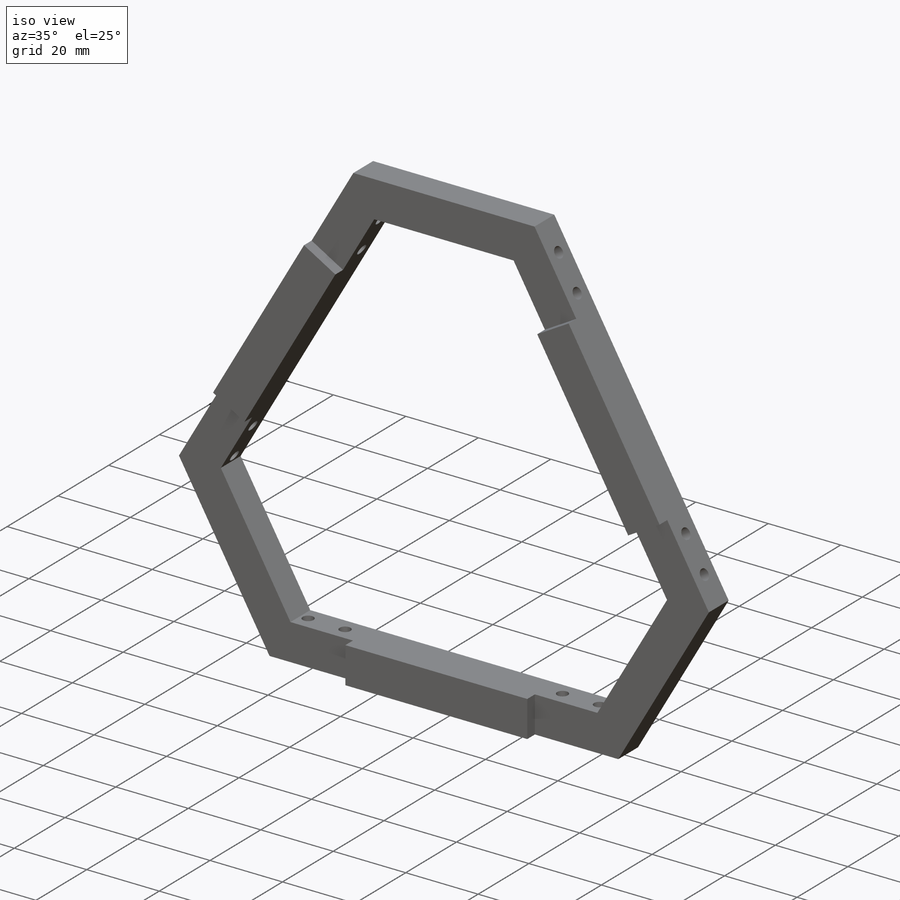
[diagram: iso view]
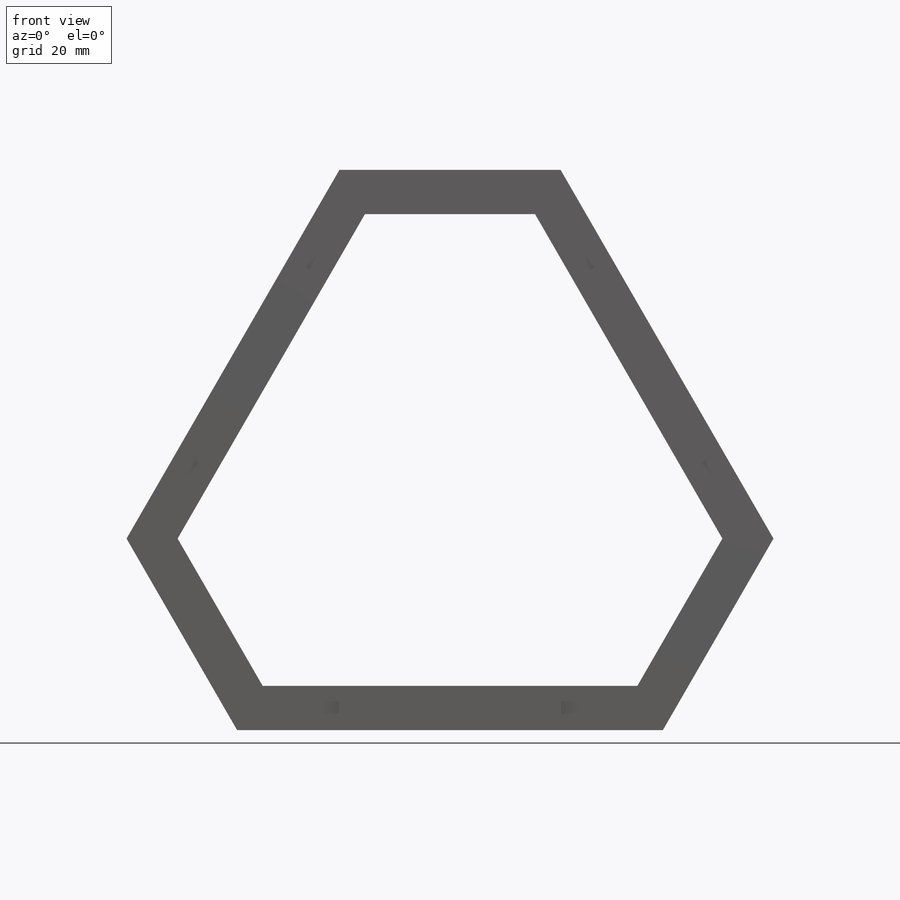
[diagram: front view]
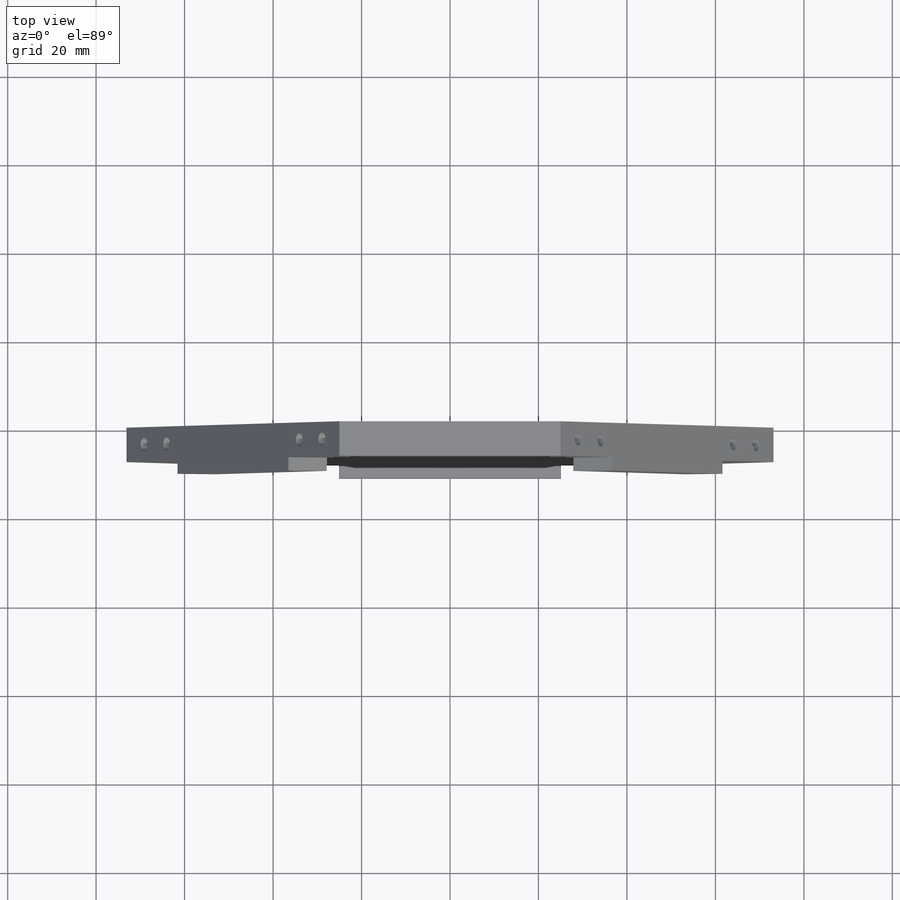
[diagram: top view]
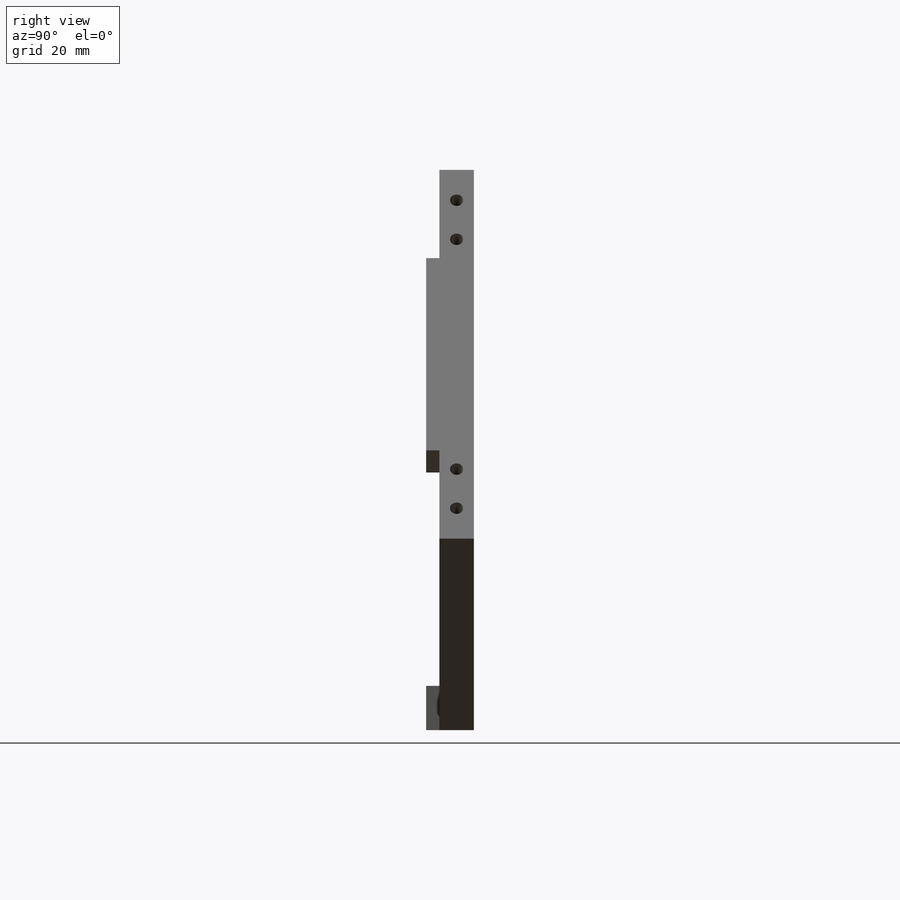
[diagram: right view]
SOLIDWORKS PART (.sldprt)
format: sldprt  version: not decoded by parser v0  size: 451,072 bytes
history: native  units: mm
features: sketch x8, cut_extrude x4, plane x3, extrude x2, material x1 (+9 scaffold rows collapsed)
feature tree (27):
  scaffold x9  (default folders/planes/origin — collapsed)
  material  "材質 <未指定>"
  plane  "前基準面"
  plane  "上基準面"
  plane  "右基準面"
  sketch  "草圖1"  dims[c1.D1=120.0mm c1.D2=70.0mm c1.D3=15.0mm c1.D4=30.0mm c1.D6=~106.243557mm c2.D2=~106.243557mm c2.D3=50.0mm c3.D2=70.0mm c3.D1=3.0 c3.D5=3.0]
  extrude  "填料-伸長1"  Depth=7.8mm
  sketch  "草圖3"  dims[c1.D1=3.0mm c1.D2=3.0mm c1.D3=3.0mm c1.D4=3.0mm c2.D3=10.2mm c2.D4=30.0mm]
  cut_extrude  "除料-伸長1"  Depth=12mm
  sketch  "草圖9"  dims[c1.D1=~2.633857mm c1.D2=3.0mm c1.D3=3.0mm c1.D4=3.0mm c2.D1=10.2mm c2.D4=30.0mm]
  cut_extrude  "除料-伸長2"  Depth=12mm
  sketch  "草圖10"  dims[c1.D1=~5.169743mm c1.D2=~5.234605mm c1.D3=3.0mm c1.D4=3.0mm c2.D1=10.2mm c2.D2=30.0mm]
  cut_extrude  "除料-伸長3"  Depth=12mm
  sketch  "草圖11"
  sketch  "草圖12"
  sketch  "草圖13"  dims[D1=10.0mm]
  cut_extrude  "除料-伸長4"  [1 undecoded]
  sketch  "草圖14"  dims[D1=25.1mm D2=25.1mm D3=25.1mm D4=25.1mm D5=25.1mm D6=25.1mm]
  extrude  "填料-伸長2"  Depth=3mm
decode coverage: 11 of 14 modeling features carry decoded parameters
note: ~ marks probable driven/reference dimensions
note: 1 parameter value undecoded
note: suppression state not decoded; provenance and decode notes live in map.json
